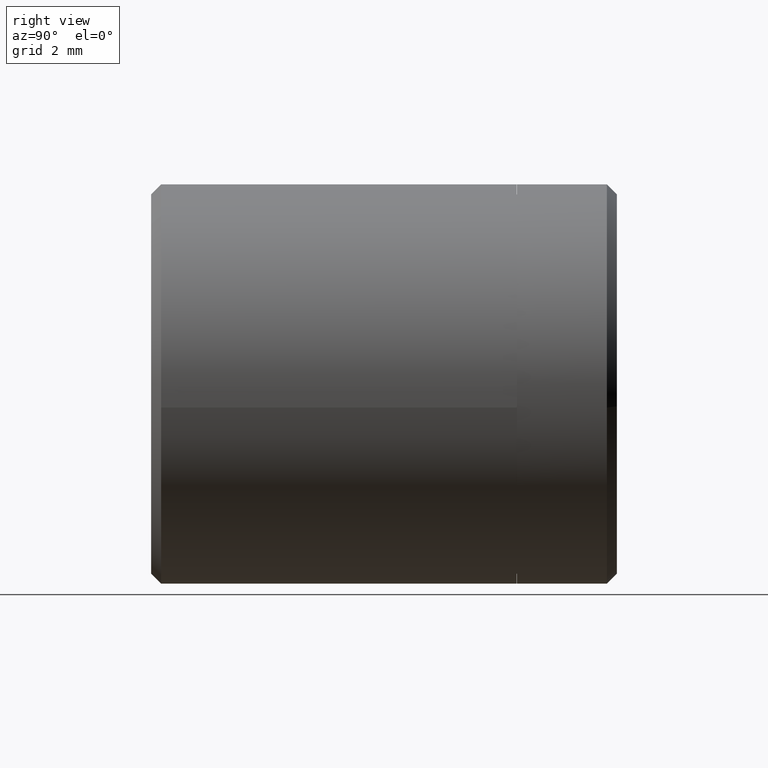
[diagram: clean part render]
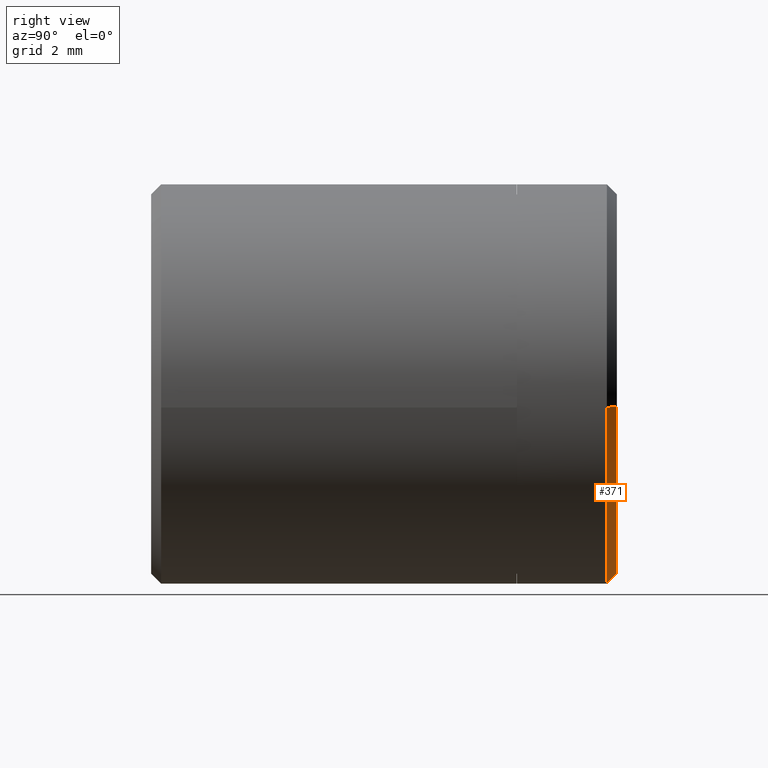
[diagram: same view with one face highlighted and labeled with its STEP entity id]
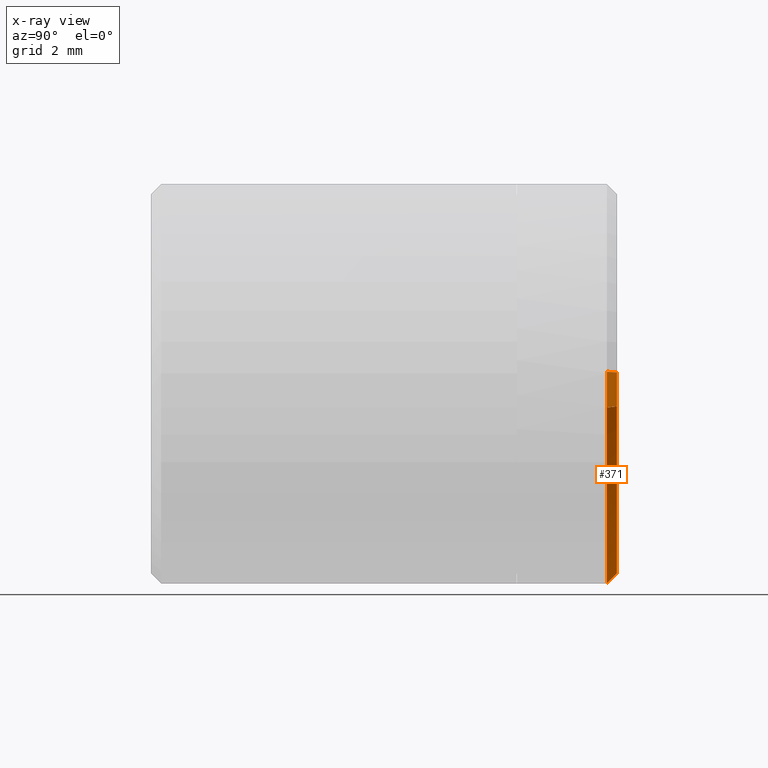
[diagram: x-ray of the same camera — body ghosted, the highlighted face saturated]
A machine part, right view. The second image highlights one B-rep face of the part: STEP entity #371.
The next image is the same camera in x-ray: the body ghosted, the highlighted face saturated — about 17% of this face is hidden behind the body in this view.
In plain terms, the highlighted face is a freeform B-spline surface patch.
Its self-contained STEP definition (entity closure, byte-faithful):
#79=CARTESIAN_POINT('',(-5.988809289598700,13.700003999999559,0.366291267734830));
#80=VERTEX_POINT('',#79);
#161=CARTESIAN_POINT('',(5.958057158182076,13.700003999998820,-0.708205407949931));
#162=VERTEX_POINT('',#161);
#212=CARTESIAN_POINT('',(0.0,13.700004000000000,-6.000000000000003));
#213=VERTEX_POINT('',#212);
#214=CARTESIAN_POINT('',(-5.988809289598700,13.700003999999558,0.366291267734829));
#215=CARTESIAN_POINT('',(-6.0,13.700004000000003,0.183316579794357));
#216=CARTESIAN_POINT('',(-6.0,13.700004000000000,-2.449215E-015));
#217=CARTESIAN_POINT('',(-6.0,13.700004000000000,-6.000000000000003));
#218=CARTESIAN_POINT('',(0.0,13.700004000000000,-6.000000000000003));
#226=(BOUNDED_CURVE()B_SPLINE_CURVE(2,(#214,#215,#216,#217,#218),.UNSPECIFIED.,.F.,.U.)B_SPLINE_CURVE_WITH_KNOTS((3,2,3),(0.739332962241806,0.750000000000000,1.0),.UNSPECIFIED.)CURVE()GEOMETRIC_REPRESENTATION_ITEM()RATIONAL_B_SPLINE_CURVE((0.976072041672854,0.987502787903192,1.0,0.707106781186548,1.0))REPRESENTATION_ITEM(''));
#227=EDGE_CURVE('',#80,#213,#226,.T.);
#229=CARTESIAN_POINT('',(0.0,13.700004000000000,-6.000000000000003));
#230=CARTESIAN_POINT('',(5.329047155691565,13.700004000000007,-6.000000000000003));
#231=CARTESIAN_POINT('',(5.958057158182076,13.700003999998819,-0.708205407949931));
#239=(BOUNDED_CURVE()B_SPLINE_CURVE(2,(#229,#230,#231),.UNSPECIFIED.,.F.,.U.)B_SPLINE_CURVE_WITH_KNOTS((3,3),(0.0,0.229562473515120),.UNSPECIFIED.)CURVE()GEOMETRIC_REPRESENTATION_ITEM()RATIONAL_B_SPLINE_CURVE((1.0,0.731050832853514,0.956026754186859))REPRESENTATION_ITEM(''));
#240=EDGE_CURVE('',#213,#162,#239,.T.);
#268=CARTESIAN_POINT('',(5.660153307263389,13.999999999999719,-0.672795019511462));
#269=VERTEX_POINT('',#268);
#270=CARTESIAN_POINT('',(5.660153307263389,13.999999999999719,-0.672795019511462));
#271=CARTESIAN_POINT('',(5.958057158182076,13.700003999998820,-0.708205407949931));
#272=QUASI_UNIFORM_CURVE('',1,(#270,#271),.UNSPECIFIED.,.F.,.U.);
#273=EDGE_CURVE('',#269,#162,#272,.T.);
#292=CARTESIAN_POINT('',(-5.689367352869963,13.999999999999771,0.347976614301856));
#293=VERTEX_POINT('',#292);
#307=CARTESIAN_POINT('',(-5.689367352869963,13.999999999999771,0.347976614301856));
#308=CARTESIAN_POINT('',(-5.988809289598700,13.700003999999559,0.366291267734830));
#309=QUASI_UNIFORM_CURVE('',1,(#307,#308),.UNSPECIFIED.,.F.,.U.);
#310=EDGE_CURVE('',#293,#80,#309,.T.);
#317=CARTESIAN_POINT('',(-5.681881316928295,14.007499899999999,0.347518748727417));
#318=CARTESIAN_POINT('',(-6.029400065655715,14.007499900000003,-5.334362568200878));
#319=CARTESIAN_POINT('',(-0.347518748727420,14.007499899999999,-5.681881316928298));
#320=CARTESIAN_POINT('',(5.018185418021771,14.007499900000012,-6.010061842719050));
#321=CARTESIAN_POINT('',(5.652705710990393,14.007499900000003,-0.671909759798508));
#322=CARTESIAN_POINT('',(-5.996481977371273,13.692316602500000,0.366760549421183));
#323=CARTESIAN_POINT('',(-6.363242526792458,13.692316602499998,-5.629721427950091));
#324=CARTESIAN_POINT('',(-0.366760549421185,13.692316602500000,-5.996481977371276));
#325=CARTESIAN_POINT('',(5.296037833212385,13.692316602499996,-6.342833563837070));
#326=CARTESIAN_POINT('',(5.965690944361788,13.692316602499998,-0.709112799144104));
#334=(BOUNDED_SURFACE()B_SPLINE_SURFACE(2,1,((#317,#322),(#318,#323),(#319,#324),(#320,#325),(#321,#326)),.UNSPECIFIED.,.F.,.F.,.U.)B_SPLINE_SURFACE_WITH_KNOTS((3,2,3),(2,2),(0.0,9.953862606454145,19.509570708650120),(0.0,0.445740208493775),.UNSPECIFIED.)GEOMETRIC_REPRESENTATION_ITEM()RATIONAL_B_SPLINE_SURFACE(((1.0,1.0),(0.707106781186548,0.707106781186548),(1.0,1.0),(0.718822509939086,0.718822509939086),(0.977505800795127,0.977505800795127)))REPRESENTATION_ITEM('')SURFACE());
#335=ORIENTED_EDGE('',*,*,#240,.F.);
#336=ORIENTED_EDGE('',*,*,#227,.F.);
#337=ORIENTED_EDGE('',*,*,#310,.F.);
#338=CARTESIAN_POINT('',(0.0,14.0,-5.699999000000003));
#339=VERTEX_POINT('',#338);
#340=CARTESIAN_POINT('',(-5.689367352869963,13.999999999999774,0.347976614301856));
#341=CARTESIAN_POINT('',(-5.699999000000000,14.000000000000005,0.174150720250896));
#342=CARTESIAN_POINT('',(-5.699999000000000,14.0,-2.449215E-015));
#343=CARTESIAN_POINT('',(-5.699999000000000,13.999999999999998,-5.699999000000003));
#344=CARTESIAN_POINT('',(0.0,14.0,-5.699999000000003));
#352=(BOUNDED_CURVE()B_SPLINE_CURVE(2,(#340,#341,#342,#343,#344),.UNSPECIFIED.,.F.,.U.)B_SPLINE_CURVE_WITH_KNOTS((3,2,3),(0.739332962241865,0.750000000000000,1.0),.UNSPECIFIED.)CURVE()GEOMETRIC_REPRESENTATION_ITEM()RATIONAL_B_SPLINE_CURVE((0.976072041672981,0.987502787903261,1.0,0.707106781186548,1.0))REPRESENTATION_ITEM(''));
#353=EDGE_CURVE('',#293,#339,#352,.T.);
#354=ORIENTED_EDGE('',*,*,#353,.T.);
#355=CARTESIAN_POINT('',(0.0,14.0,-5.699999000000003));
#356=CARTESIAN_POINT('',(5.062593909744418,14.000000000000005,-5.699999000000002));
#357=CARTESIAN_POINT('',(5.660153307263389,13.999999999999721,-0.672795019511462));
#365=(BOUNDED_CURVE()B_SPLINE_CURVE(2,(#355,#356,#357),.UNSPECIFIED.,.F.,.U.)B_SPLINE_CURVE_WITH_KNOTS((3,3),(0.0,0.229562473515517),.UNSPECIFIED.)CURVE()GEOMETRIC_REPRESENTATION_ITEM()RATIONAL_B_SPLINE_CURVE((1.0,0.731050832853050,0.956026754187636))REPRESENTATION_ITEM(''));
#366=EDGE_CURVE('',#339,#269,#365,.T.);
#367=ORIENTED_EDGE('',*,*,#366,.T.);
#368=ORIENTED_EDGE('',*,*,#273,.T.);
#369=EDGE_LOOP('',(#335,#336,#337,#354,#367,#368));
#370=FACE_OUTER_BOUND('',#369,.T.);
#371=ADVANCED_FACE('',(#370),#334,.T.);